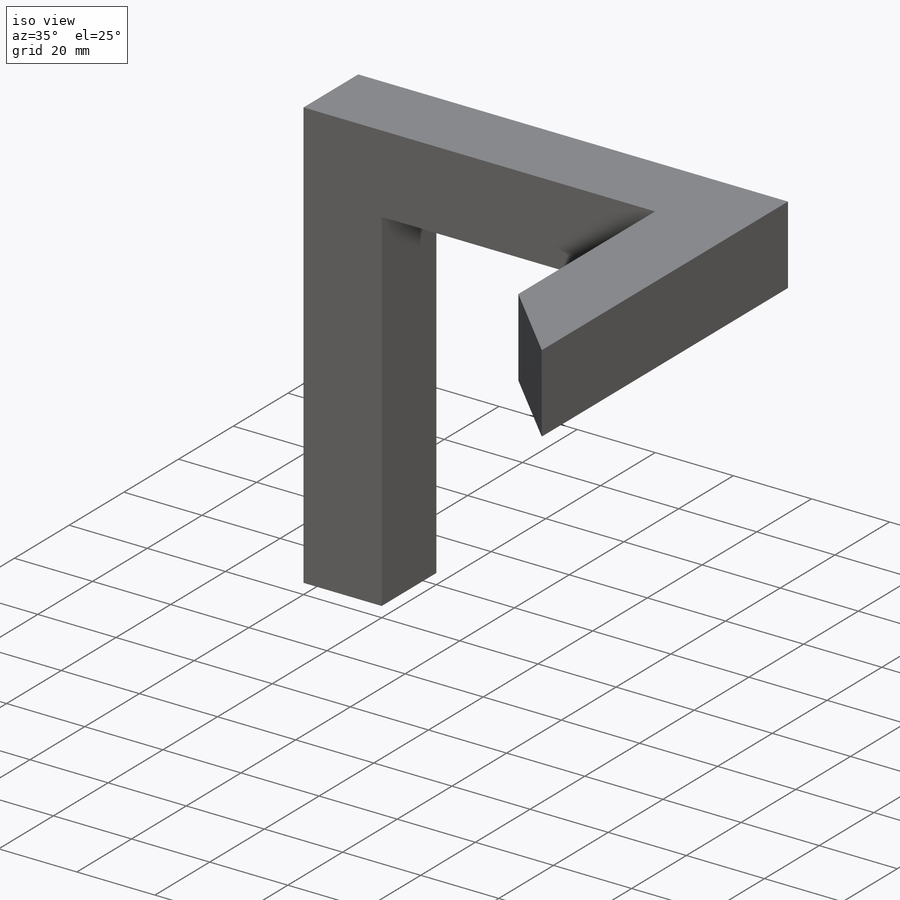
[diagram: iso view]
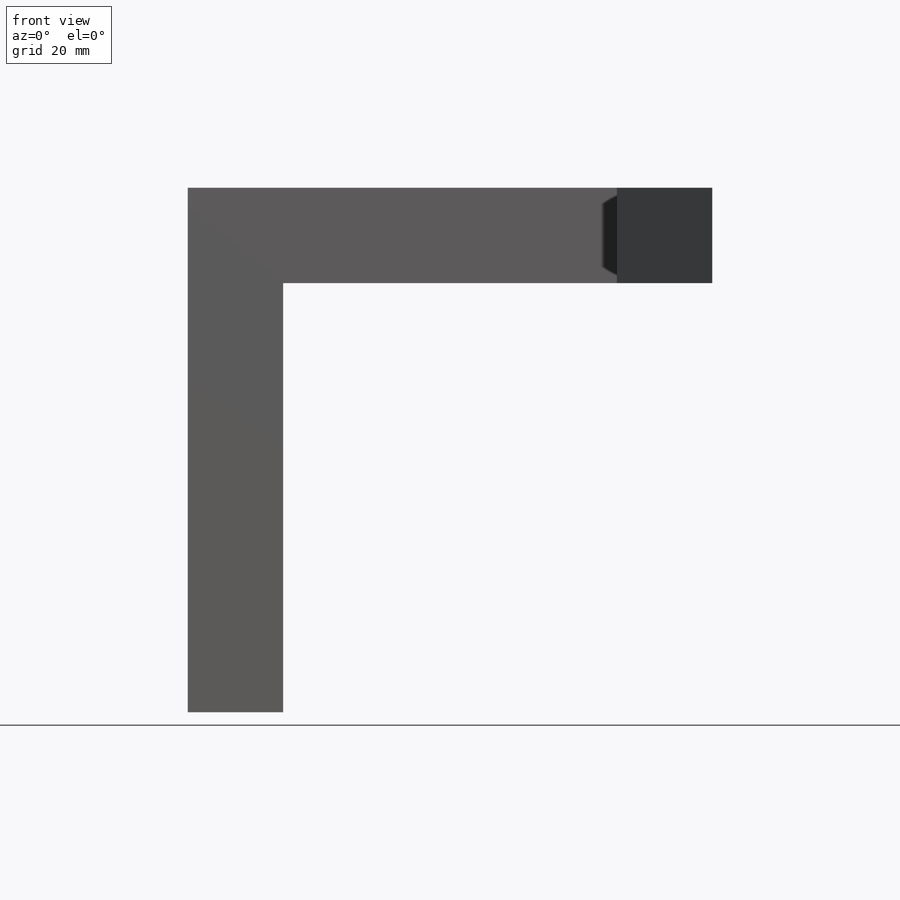
[diagram: front view]
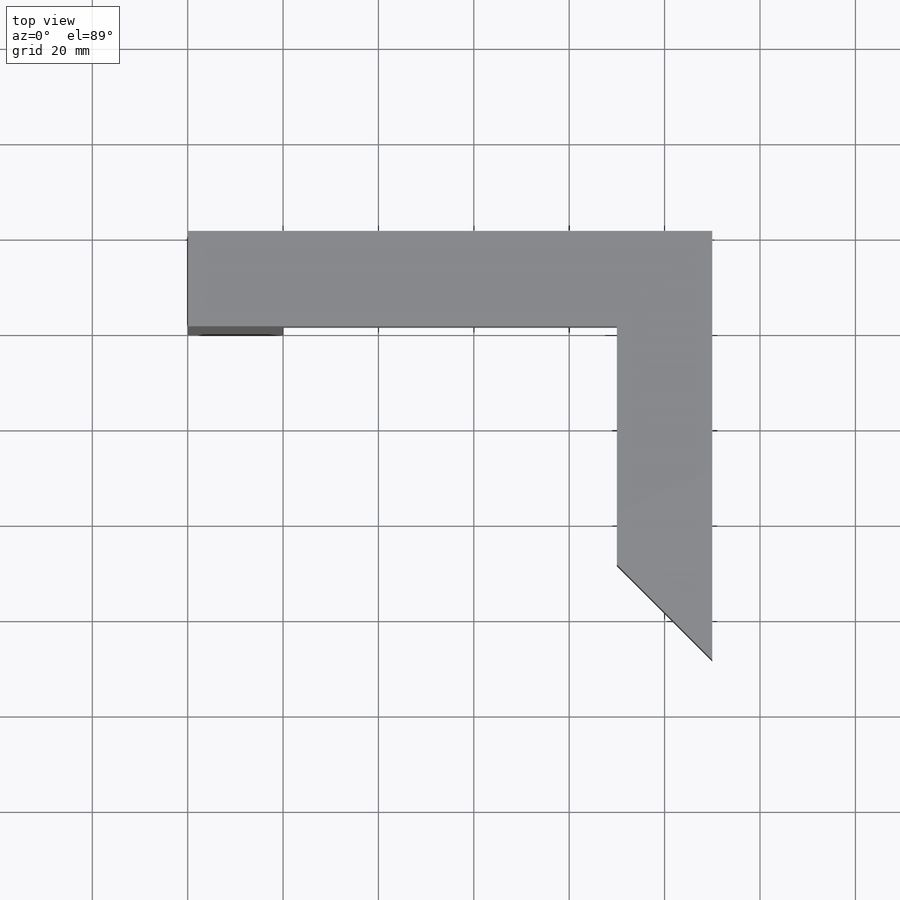
[diagram: top view]
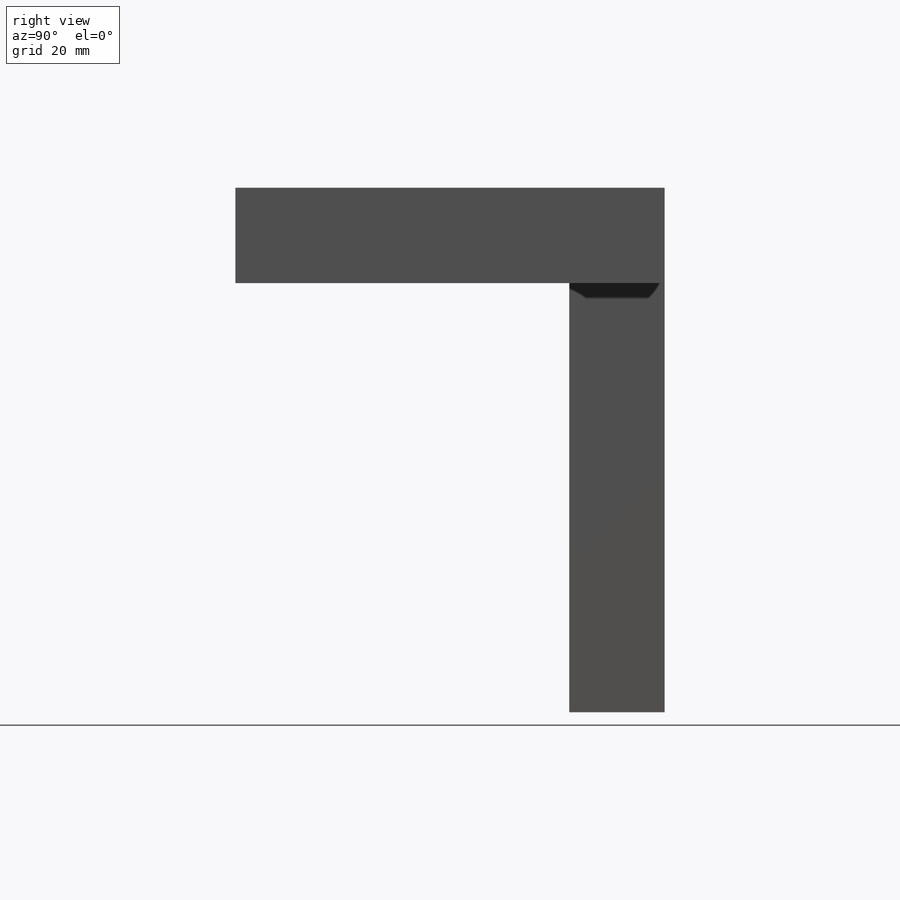
[diagram: right view]
SOLIDWORKS PART (.sldprt)
format: sldprt  version: not decoded by parser v0  size: 180,224 bytes
history: native  units: mm
features: plane x3, sketch x2, extrude x2, material x1, chamfer x1 (+9 scaffold rows collapsed)
feature tree (18):
  scaffold x9  (default folders/planes/origin — collapsed)
  material  "Material <not specified>"
  plane  "Face"
  plane  "Dessus"
  plane  "Droite"
  sketch  "Esquisse2"  dims[c1.D1=20.0mm c1.D2=20.0mm c1.D3=90.0mm c1.D4=110.0mm c2.D3=110.0mm]
  extrude  "Extrusion2"  Depth=20mm
  sketch  "Esquisse3"  dims[D1=20.0mm]
  extrude  "Extrusion3"  Depth=70mm
  chamfer  "Chanfrein1"  Distance=20mm Angle=45deg
decode coverage: 5 of 5 modeling features carry decoded parameters
note: suppression state not decoded; provenance and decode notes live in map.json
